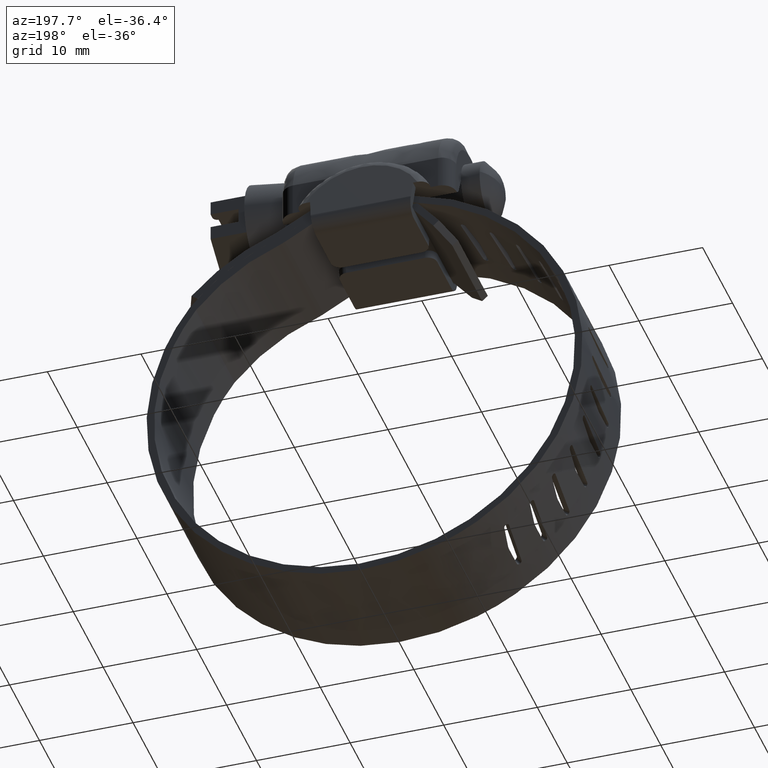
[diagram: clean part render]
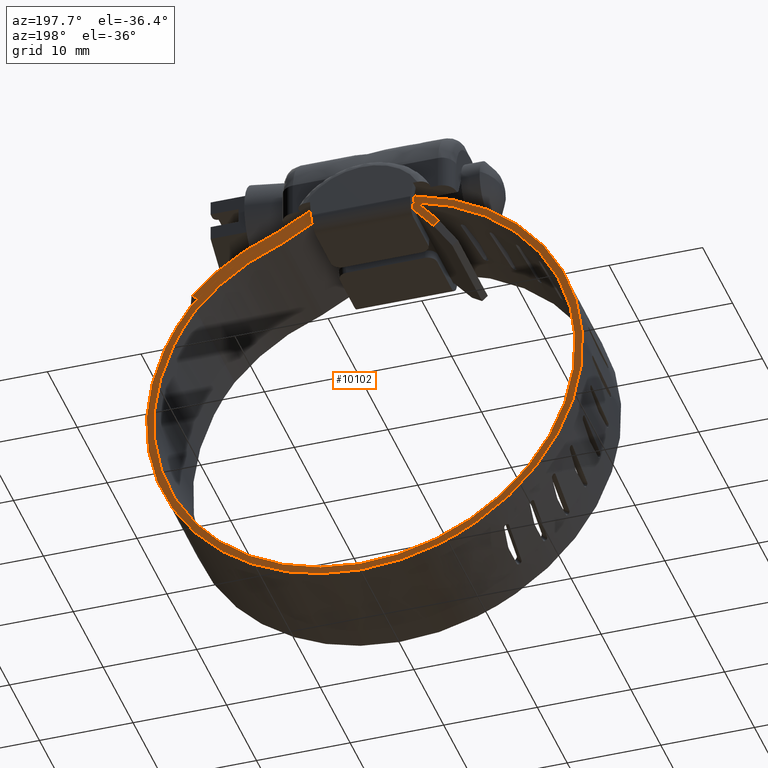
[diagram: same view with one face highlighted and labeled with its STEP entity id]
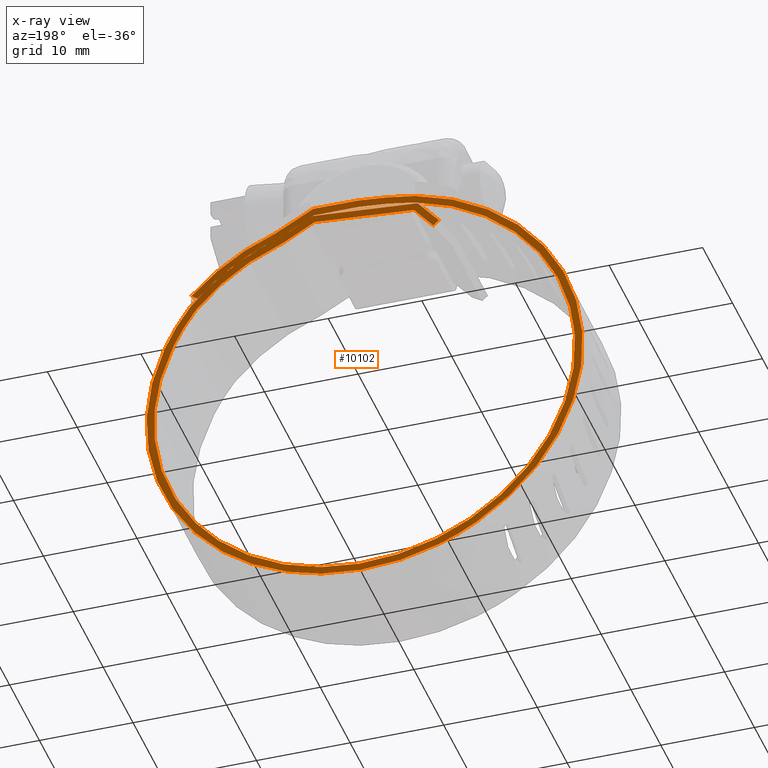
[diagram: x-ray of the same camera — body ghosted, the highlighted face saturated]
A machine part, auxiliary view. The second image highlights one B-rep face of the part: STEP entity #10102.
The next image is the same camera in x-ray: the body ghosted, the highlighted face saturated — about 0% of this face is hidden behind the body in this view.
In plain terms, the highlighted face is a freeform B-spline surface patch.
Its self-contained STEP definition (entity closure, byte-faithful):
#7702=CARTESIAN_POINT('',(-7.943454360734600,6.499999999999719,8.477295496238440));
#7703=VERTEX_POINT('',#7702);
#7711=CARTESIAN_POINT('',(-7.334360875789129,6.499999999999880,7.958638454835349));
#7712=VERTEX_POINT('',#7711);
#7713=CARTESIAN_POINT('',(-7.334360875789129,6.499999999999880,7.958638454835349));
#7714=CARTESIAN_POINT('',(-7.943454360734600,6.499999999999719,8.477295496238440));
#7715=QUASI_UNIFORM_CURVE('',1,(#7713,#7714),.UNSPECIFIED.,.F.,.U.);
#7716=EDGE_CURVE('',#7712,#7703,#7715,.T.);
#7852=CARTESIAN_POINT('',(-5.420225032641400,6.499999999999840,12.119784642097800));
#7853=VERTEX_POINT('',#7852);
#7859=CARTESIAN_POINT('',(-7.915607043560375,6.499999999999840,-32.455222895916933));
#7860=VERTEX_POINT('',#7859);
#7861=CARTESIAN_POINT('',(-5.420225032641400,6.499999999999840,12.119784642097800));
#7862=CARTESIAN_POINT('',(-6.553363053354350,6.499999999999843,11.848810389936119));
#7863=CARTESIAN_POINT('',(-8.667546591455299,6.499999999999836,11.171979570614120));
#7864=CARTESIAN_POINT('',(-11.608471729144510,6.499999999999840,9.743057456246287));
#7865=CARTESIAN_POINT('',(-14.265468575385441,6.499999999999871,7.974393463811858));
#7866=CARTESIAN_POINT('',(-16.422196474544521,6.499999999999777,6.064336440502831));
#7867=CARTESIAN_POINT('',(-18.078704747728398,6.499999999999912,4.207528219871145));
#7868=CARTESIAN_POINT('',(-19.723587648670179,6.499999999999742,1.991383399053899));
#7869=CARTESIAN_POINT('',(-21.184989099740449,6.500000000000062,-0.630703590822162));
#7870=CARTESIAN_POINT('',(-22.195045637467341,6.499999999999763,-3.327264151224911));
#7871=CARTESIAN_POINT('',(-22.856743338214379,6.499999999999819,-5.805203635919967));
#7872=CARTESIAN_POINT('',(-23.225217670279928,6.499999999999961,-8.111417644933207));
#7873=CARTESIAN_POINT('',(-23.350093552466319,6.499999999999765,-10.985820363683670));
#7874=CARTESIAN_POINT('',(-23.154174963040401,6.499999999999876,-13.625876123781721));
#7875=CARTESIAN_POINT('',(-22.629974056229479,6.499999999999837,-16.257584157452278));
#7876=CARTESIAN_POINT('',(-21.908133905328359,6.499999999999834,-18.598568562102191));
#7877=CARTESIAN_POINT('',(-21.036398823552229,6.499999999999841,-20.637006557349942));
#7878=CARTESIAN_POINT('',(-19.925391522427880,6.499999999999838,-22.687140470175081));
#7879=CARTESIAN_POINT('',(-18.601999339066651,6.499999999999846,-24.656768658001159));
#7880=CARTESIAN_POINT('',(-17.036042239676600,6.499999999999836,-26.491085688428399));
#7881=CARTESIAN_POINT('',(-15.300428843931090,6.499999999999846,-28.162821508006040));
#7882=CARTESIAN_POINT('',(-13.622288886044910,6.499999999999834,-29.490009062073931));
#7883=CARTESIAN_POINT('',(-11.138014297878961,6.499999999999848,-31.088133086519541));
#7884=CARTESIAN_POINT('',(-9.267150415888365,6.499999999999837,-31.967223456008810));
#7885=CARTESIAN_POINT('',(-7.915607043560375,6.499999999999840,-32.455222895916933));
#7886=B_SPLINE_CURVE_WITH_KNOTS('',3,(#7861,#7862,#7863,#7864,#7865,#7866,#7867,#7868,#7869,#7870,#7871,#7872,#7873,#7874,#7875,#7876,#7877,#7878,#7879,#7880,#7881,#7882,#7883,#7884,#7885),.UNSPECIFIED.,.F.,.U.,(4,1,1,1,1,1,1,1,1,1,1,1,1,1,1,1,1,1,1,1,1,1,4),(0.000000054419928,3.495254881927451,6.640972387819019,9.786732199204977,13.048974367572660,15.262643474164619,17.243292770001450,21.321115237118772,24.233816571064800,25.864966200061460,29.010707065615470,31.224302831318379,34.486551010590993,36.933259447848101,39.263420735544180,41.826621449156463,43.574259209524712,46.253965652463933,48.933663852548200,50.797818299883303,53.477527083685388,55.341670534495229,59.652463017857123),.UNSPECIFIED.);
#7887=EDGE_CURVE('',#7853,#7860,#7886,.T.);
#7889=CARTESIAN_POINT('',(18.650252286510000,6.499999999999840,3.425319831993435));
#7890=VERTEX_POINT('',#7889);
#7891=CARTESIAN_POINT('',(-7.915607043560375,6.499999999999840,-32.455222895916933));
#7892=CARTESIAN_POINT('',(-7.148567087202244,6.499999999999834,-32.732293461372663));
#7893=CARTESIAN_POINT('',(-5.362022812623450,6.499999999999825,-33.273466383503859));
#7894=CARTESIAN_POINT('',(-2.601822755866314,6.499999999999895,-33.758986033262417));
#7895=CARTESIAN_POINT('',(0.079797787722045,6.499999999999802,-33.884004422802782));
#7896=CARTESIAN_POINT('',(2.951693589323730,6.499999999999751,-33.716141970645232));
#7897=CARTESIAN_POINT('',(6.054585117971497,6.500000000000117,-33.140598794001150));
#7898=CARTESIAN_POINT('',(9.615579572662419,6.499999999999633,-31.877234560201060));
#7899=CARTESIAN_POINT('',(12.551700384594330,6.499999999999947,-30.260115316485379));
#7900=CARTESIAN_POINT('',(14.702447453663250,6.499999999999810,-28.655440118321991));
#7901=CARTESIAN_POINT('',(16.355324451066050,6.499999999999873,-27.180880194330129));
#7902=CARTESIAN_POINT('',(17.763989868093208,6.499999999999758,-25.675841683639529));
#7903=CARTESIAN_POINT('',(19.231736671863349,6.499999999999776,-23.764342286716388));
#7904=CARTESIAN_POINT('',(20.420295279799170,6.499999999999890,-21.846579593475511));
#7905=CARTESIAN_POINT('',(21.439706988606861,6.499999999999874,-19.748598796102652));
#7906=CARTESIAN_POINT('',(22.356955742679901,6.499999999999479,-17.310453982492099));
#7907=CARTESIAN_POINT('',(23.034455090306938,6.500000000000821,-14.509253313393570));
#7908=CARTESIAN_POINT('',(23.329015408310831,6.499999999999262,-11.566628618604630));
#7909=CARTESIAN_POINT('',(23.285810592460130,6.500000000000177,-8.727997655163478));
#7910=CARTESIAN_POINT('',(22.913242748315611,6.499999999999710,-5.989562775471554));
#7911=CARTESIAN_POINT('',(22.132470209696631,6.499999999999890,-3.057486476579130));
#7912=CARTESIAN_POINT('',(20.837154753306450,6.499999999999821,0.114167716087371));
#7913=CARTESIAN_POINT('',(19.511683448598930,6.499999999999850,2.275223016192709));
#7914=CARTESIAN_POINT('',(18.650252286510000,6.499999999999840,3.425319831993435));
#7915=B_SPLINE_CURVE_WITH_KNOTS('',3,(#7891,#7892,#7893,#7894,#7895,#7896,#7897,#7898,#7899,#7900,#7901,#7902,#7903,#7904,#7905,#7906,#7907,#7908,#7909,#7910,#7911,#7912,#7913,#7914),.UNSPECIFIED.,.F.,.U.,(4,1,1,1,1,1,1,1,1,1,1,1,1,1,1,1,1,1,1,1,1,4),(0.000000054406485,2.446647714359436,5.592416570020617,8.388609654903164,10.485773257100680,14.214062504475899,17.825842638563959,21.787150746692259,24.233816571054039,25.864966200051139,28.428162981069381,30.408763950502699,33.088443390256728,35.185629683141919,37.399293694048232,40.894548254998462,43.807274886092927,46.253965652459719,49.399700442262407,52.079416846644612,55.341670534494448,59.652463017857208),.UNSPECIFIED.);
#7916=EDGE_CURVE('',#7860,#7890,#7915,.T.);
#8149=CARTESIAN_POINT('',(18.023018152026101,6.499999999999840,2.928253715390470));
#8150=VERTEX_POINT('',#8149);
#8156=CARTESIAN_POINT('',(-7.596593018965153,6.499999999999840,-31.719804841260569));
#8157=VERTEX_POINT('',#8156);
#8158=CARTESIAN_POINT('',(-7.596593018965153,6.499999999999840,-31.719804841260569));
#8159=CARTESIAN_POINT('',(-6.538927900657038,6.499999999999838,-32.099236060880628));
#8160=CARTESIAN_POINT('',(-4.366585561281712,6.499999999999856,-32.699171918352143));
#8161=CARTESIAN_POINT('',(-1.644247416016669,6.499999999999823,-33.026491288134103));
#8162=CARTESIAN_POINT('',(1.016337482434560,6.499999999999820,-33.059170329735778));
#8163=CARTESIAN_POINT('',(3.222647443987493,6.499999999999915,-32.859860204026020));
#8164=CARTESIAN_POINT('',(5.535309635088588,6.499999999999710,-32.379065125963798));
#8165=CARTESIAN_POINT('',(7.509744679906777,6.499999999999982,-31.784797141981361));
#8166=CARTESIAN_POINT('',(9.873534142538857,6.499999999999758,-30.827727226347200));
#8167=CARTESIAN_POINT('',(12.133187515925171,6.499999999999870,-29.557509431145419));
#8168=CARTESIAN_POINT('',(14.458386207367530,6.499999999999838,-27.846250798672990));
#8169=CARTESIAN_POINT('',(16.382710022435312,6.499999999999838,-26.056015671170520));
#8170=CARTESIAN_POINT('',(18.416966392675931,6.499999999999823,-23.599499998303660));
#8171=CARTESIAN_POINT('',(20.045579448972440,6.500000000000035,-20.939031300053610));
#8172=CARTESIAN_POINT('',(21.264366852122560,6.499999999999741,-18.071923521190730));
#8173=CARTESIAN_POINT('',(22.126805241197552,6.499999999999290,-15.040239296731761));
#8174=CARTESIAN_POINT('',(22.493706637569311,6.500000000001438,-12.282822844293300));
#8175=CARTESIAN_POINT('',(22.516861249222501,6.499999999998025,-9.171565536803632));
#8176=CARTESIAN_POINT('',(22.215221105993631,6.500000000000755,-6.558106925761955));
#8177=CARTESIAN_POINT('',(21.556899602359330,6.499999999999696,-3.977717691031645));
#8178=CARTESIAN_POINT('',(20.809599297808258,6.499999999999885,-1.895898601510198));
#8179=CARTESIAN_POINT('',(19.724338561069811,6.499999999999503,0.412184842243381));
#8180=CARTESIAN_POINT('',(18.695739401612119,6.500000000000694,2.028200477993318));
#8181=CARTESIAN_POINT('',(18.023018152026101,6.499999999999840,2.928253715390470));
#8182=B_SPLINE_CURVE_WITH_KNOTS('',3,(#8158,#8159,#8160,#8161,#8162,#8163,#8164,#8165,#8166,#8167,#8168,#8169,#8170,#8171,#8172,#8173,#8174,#8175,#8176,#8177,#8178,#8179,#8180,#8181),.UNSPECIFIED.,.F.,.U.,(4,1,1,1,1,1,1,1,1,1,1,1,1,1,1,1,1,1,1,1,1,4),(0.000000055448439,3.370994035623703,6.742046610118614,8.202827973352726,11.349124097512940,13.371741699393160,15.281997045528110,17.529355889829940,21.012760713756531,23.035381931021359,26.181682698895770,28.878445189869421,32.586571940129723,35.508139317033397,38.204968901731853,42.025478409856269,43.823365152177033,47.531496503218072,49.891221320383210,51.801488231966751,54.161185352416567,57.532209339589713),.UNSPECIFIED.);
#8183=EDGE_CURVE('',#8157,#8150,#8182,.T.);
#8185=CARTESIAN_POINT('',(-5.352989624915730,6.499999999999840,11.312958498989421));
#8186=VERTEX_POINT('',#8185);
#8187=CARTESIAN_POINT('',(-5.352989624915730,6.499999999999840,11.312958498989421));
#8188=CARTESIAN_POINT('',(-6.844660197153641,6.499999999999827,10.947842366523121));
#8189=CARTESIAN_POINT('',(-8.795040979111834,6.499999999999887,10.251846479895921));
#8190=CARTESIAN_POINT('',(-11.288364607505960,6.499999999999784,8.953947572134041));
#8191=CARTESIAN_POINT('',(-12.967291528066500,6.499999999999899,7.890026959759283));
#8192=CARTESIAN_POINT('',(-14.623322868136370,6.499999999999770,6.598860335059025));
#8193=CARTESIAN_POINT('',(-16.567158980320741,6.499999999999869,4.780457004647321));
#8194=CARTESIAN_POINT('',(-18.335722025571830,6.499999999999796,2.632560060055161));
#8195=CARTESIAN_POINT('',(-19.817271196333039,6.499999999999831,0.196780670024494));
#8196=CARTESIAN_POINT('',(-20.864545081512858,6.499999999999871,-2.004119719319417));
#8197=CARTESIAN_POINT('',(-21.794528506343351,6.499999999999787,-4.660263466897697));
#8198=CARTESIAN_POINT('',(-22.397326895519409,6.499999999999911,-7.681900231633582));
#8199=CARTESIAN_POINT('',(-22.567339586692380,6.499999999999913,-10.942998759593619));
#8200=CARTESIAN_POINT('',(-22.286002392095799,6.499999999999793,-14.235771804105610));
#8201=CARTESIAN_POINT('',(-21.553260128127452,6.499999999999854,-17.229210976200459));
#8202=CARTESIAN_POINT('',(-20.638883829586131,6.499999999999838,-19.569621896482129));
#8203=CARTESIAN_POINT('',(-19.629487655932419,6.499999999999838,-21.620927426183162));
#8204=CARTESIAN_POINT('',(-18.473460967966169,6.499999999999849,-23.466072218714292));
#8205=CARTESIAN_POINT('',(-16.867991054671759,6.499999999999829,-25.494361353606660));
#8206=CARTESIAN_POINT('',(-15.267072822011590,6.499999999999885,-27.130752428338919));
#8207=CARTESIAN_POINT('',(-13.033819907397470,6.499999999999673,-28.960901713367509));
#8208=CARTESIAN_POINT('',(-10.544892041026650,6.500000000000276,-30.509686334230860));
#8209=CARTESIAN_POINT('',(-8.513264532091506,6.499999999999239,-31.391028256005189));
#8210=CARTESIAN_POINT('',(-7.596593018965153,6.499999999999840,-31.719804841260569));
#8211=B_SPLINE_CURVE_WITH_KNOTS('',3,(#8187,#8188,#8189,#8190,#8191,#8192,#8193,#8194,#8195,#8196,#8197,#8198,#8199,#8200,#8201,#8202,#8203,#8204,#8205,#8206,#8207,#8208,#8209,#8210),.UNSPECIFIED.,.F.,.U.,(4,1,1,1,1,1,1,1,1,1,1,1,1,1,1,1,1,1,1,1,1,4),(0.000000055438981,4.607042374785742,6.180194844130625,8.427551702204006,10.562552149176710,12.472802630363180,16.405676778574620,18.877761955522750,21.012760932068488,23.709569149438170,27.305331168867770,30.226871971810152,33.485517068349367,37.193674618894192,39.441022082354920,41.014173478588773,44.048099737821524,45.958351314642329,48.767544127779182,50.902544330431688,54.610657279322638,57.532209937418052),.UNSPECIFIED.);
#8212=EDGE_CURVE('',#8186,#8157,#8211,.T.);
#8388=CARTESIAN_POINT('',(8.891210296745609,6.499999999999840,9.261212900200299));
#8389=VERTEX_POINT('',#8388);
#8395=CARTESIAN_POINT('',(18.023018152026101,6.499999999999840,2.928253715390470));
#8396=CARTESIAN_POINT('',(17.533403360860738,6.499999999999852,3.511325429196206));
#8397=CARTESIAN_POINT('',(16.370839677186471,6.499999999999823,4.752959451519467));
#8398=CARTESIAN_POINT('',(14.346835983308861,6.499999999999852,6.450080114185261));
#8399=CARTESIAN_POINT('',(11.818182759275849,6.499999999999822,8.052360907132933));
#8400=CARTESIAN_POINT('',(9.940166576453022,6.499999999999877,8.889744727215955));
#8401=CARTESIAN_POINT('',(8.891210296745609,6.499999999999840,9.261212900200299));
#8402=B_SPLINE_CURVE_WITH_KNOTS('',3,(#8395,#8396,#8397,#8398,#8399,#8400,#8401),.UNSPECIFIED.,.F.,.U.,(4,1,1,1,4),(3.220642E-009,2.284134800954798,5.095385461057345,7.906620998508275,11.244972398327731),.UNSPECIFIED.);
#8403=EDGE_CURVE('',#8150,#8389,#8402,.T.);
#8432=CARTESIAN_POINT('',(8.520745558330830,6.499999999999840,9.442571207108379));
#8433=VERTEX_POINT('',#8432);
#8439=CARTESIAN_POINT('',(8.520745558330830,6.499999999999840,9.442571207108379));
#8440=CARTESIAN_POINT('',(8.636741866078252,6.499999999999836,9.368191226072726));
#8441=CARTESIAN_POINT('',(8.761315274702623,6.499999999999844,9.307202184358193));
#8442=CARTESIAN_POINT('',(8.891210296745609,6.499999999999840,9.261212900200299));
#8443=B_SPLINE_CURVE_WITH_KNOTS('',3,(#8439,#8440,#8441,#8442),.UNSPECIFIED.,.F.,.U.,(4,4),(1.693800E-009,0.413385586399348),.UNSPECIFIED.);
#8444=EDGE_CURVE('',#8433,#8389,#8443,.T.);
#8473=CARTESIAN_POINT('',(5.345477946834220,6.499999999999840,11.222824051806439));
#8474=VERTEX_POINT('',#8473);
#8480=CARTESIAN_POINT('',(8.520745558330830,6.499999999999840,9.442571207108379));
#8481=CARTESIAN_POINT('',(7.498628657825021,6.499999999999824,10.097855615698160));
#8482=CARTESIAN_POINT('',(6.437736373960262,6.499999999999857,10.692644560035360));
#8483=CARTESIAN_POINT('',(5.345477946834220,6.499999999999840,11.222824051806439));
#8484=B_SPLINE_CURVE_WITH_KNOTS('',3,(#8480,#8481,#8482,#8483),.UNSPECIFIED.,.F.,.U.,(4,4),(1.337912E-010,3.642398924120134),.UNSPECIFIED.);
#8485=EDGE_CURVE('',#8433,#8474,#8484,.T.);
#8503=CARTESIAN_POINT('',(-5.275000000000000,6.499999999999840,10.377083000000200));
#8504=VERTEX_POINT('',#8503);
#8510=CARTESIAN_POINT('',(-5.275000000000000,6.499999999999840,10.377083000000200));
#8511=CARTESIAN_POINT('',(5.345477946834220,6.499999999999840,11.222824051806439));
#8512=QUASI_UNIFORM_CURVE('',1,(#8510,#8511),.UNSPECIFIED.,.F.,.U.);
#8513=EDGE_CURVE('',#8504,#8474,#8512,.T.);
#8530=CARTESIAN_POINT('',(-7.334360875789129,6.499999999999880,7.958638454835349));
#8531=CARTESIAN_POINT('',(-5.275000000000000,6.499999999999840,10.377083000000200));
#8532=QUASI_UNIFORM_CURVE('',1,(#8530,#8531),.UNSPECIFIED.,.F.,.U.);
#8533=EDGE_CURVE('',#7712,#8504,#8532,.T.);
#8566=CARTESIAN_POINT('',(-5.669089974837690,6.499999999999840,11.148232973712741));
#8567=VERTEX_POINT('',#8566);
#8568=CARTESIAN_POINT('',(-5.669089974837690,6.499999999999840,11.148232973712741));
#8569=CARTESIAN_POINT('',(-7.943454360734600,6.499999999999719,8.477295496238440));
#8570=QUASI_UNIFORM_CURVE('',1,(#8568,#8569),.UNSPECIFIED.,.F.,.U.);
#8571=EDGE_CURVE('',#8567,#7703,#8570,.T.);
#8603=CARTESIAN_POINT('',(5.497490615650190,6.499999999999840,12.037461844668920));
#8604=VERTEX_POINT('',#8603);
#8610=CARTESIAN_POINT('',(5.497490615650190,6.499999999999840,12.037461844668920));
#8611=CARTESIAN_POINT('',(-5.669089974837690,6.499999999999840,11.148232973712741));
#8612=QUASI_UNIFORM_CURVE('',1,(#8610,#8611),.UNSPECIFIED.,.F.,.U.);
#8613=EDGE_CURVE('',#8604,#8567,#8612,.T.);
#8642=CARTESIAN_POINT('',(8.952501685405251,6.499999999999840,10.116059579619000));
#8643=VERTEX_POINT('',#8642);
#8649=CARTESIAN_POINT('',(8.952501685405251,6.499999999999840,10.116059579619000));
#8650=CARTESIAN_POINT('',(7.842401183048898,6.499999999999846,10.827739501784350));
#8651=CARTESIAN_POINT('',(6.687732523731253,6.499999999999827,11.469890321215640));
#8652=CARTESIAN_POINT('',(5.497490615650190,6.499999999999840,12.037461844668920));
#8653=B_SPLINE_CURVE_WITH_KNOTS('',3,(#8649,#8650,#8651,#8652),.UNSPECIFIED.,.F.,.U.,(4,4),(1.434333E-010,3.955920062126980),.UNSPECIFIED.);
#8654=EDGE_CURVE('',#8643,#8604,#8653,.T.);
#8683=CARTESIAN_POINT('',(9.158315498192051,6.499999999999840,10.015304944555799));
#8684=VERTEX_POINT('',#8683);
#8690=CARTESIAN_POINT('',(8.952501685405251,6.499999999999840,10.116059579619000));
#8691=CARTESIAN_POINT('',(9.016942980928654,6.499999999999854,10.074732998908701));
#8692=CARTESIAN_POINT('',(9.086154146414513,6.499999999999833,10.040857995311811));
#8693=CARTESIAN_POINT('',(9.158315498192051,6.499999999999840,10.015304944555799));
#8694=B_SPLINE_CURVE_WITH_KNOTS('',3,(#8690,#8691,#8692,#8693),.UNSPECIFIED.,.F.,.U.,(4,4),(2.437034E-009,0.229664641168087),.UNSPECIFIED.);
#8695=EDGE_CURVE('',#8643,#8684,#8694,.T.);
#8726=CARTESIAN_POINT('',(18.650252286510000,6.499999999999840,3.425319831993435));
#8727=CARTESIAN_POINT('',(17.868002952177960,6.499999999999818,4.358980206257459));
#8728=CARTESIAN_POINT('',(16.276445439194859,6.499999999999877,5.965186761612056));
#8729=CARTESIAN_POINT('',(13.943419600956609,6.499999999999846,7.687833569278358));
#8730=CARTESIAN_POINT('',(11.617726276766399,6.499999999999768,9.024103987960611));
#8731=CARTESIAN_POINT('',(10.105547802453390,6.499999999999883,9.679832065079637));
#8732=CARTESIAN_POINT('',(9.158315498192051,6.499999999999840,10.015304944555799));
#8733=B_SPLINE_CURVE_WITH_KNOTS('',3,(#8726,#8727,#8728,#8729,#8730,#8731,#8732),.UNSPECIFIED.,.F.,.U.,(4,1,1,1,4),(3.171975E-009,3.654118917840622,6.760114628757830,8.678526904285082,11.693173416253281),.UNSPECIFIED.);
#8734=EDGE_CURVE('',#7890,#8684,#8733,.T.);
#9724=CARTESIAN_POINT('',(18.489079278440450,6.499999999999840,4.831032631837601));
#9725=VERTEX_POINT('',#9724);
#9732=CARTESIAN_POINT('',(17.845437538605001,6.499999999999840,4.348126313892585));
#9733=VERTEX_POINT('',#9732);
#9739=CARTESIAN_POINT('',(18.489079278440450,6.499999999999840,4.831032631837601));
#9740=CARTESIAN_POINT('',(17.845437538605001,6.499999999999840,4.348126313892585));
#9741=QUASI_UNIFORM_CURVE('',1,(#9739,#9740),.UNSPECIFIED.,.F.,.U.);
#9742=EDGE_CURVE('',#9725,#9733,#9741,.T.);
#9812=CARTESIAN_POINT('',(9.408111426015370,6.499999999999840,10.786125742977420));
#9813=VERTEX_POINT('',#9812);
#9819=CARTESIAN_POINT('',(5.491601281603991,6.499999999999840,12.935040689760960));
#9820=VERTEX_POINT('',#9819);
#9821=CARTESIAN_POINT('',(9.408111426015370,6.499999999999840,10.786125742977420));
#9822=CARTESIAN_POINT('',(8.154068837886804,6.499999999999961,11.591315979898489));
#9823=CARTESIAN_POINT('',(6.844419249367082,6.499999999999733,12.309873657796141));
#9824=CARTESIAN_POINT('',(5.491601281603991,6.499999999999840,12.935040689760960));
#9825=B_SPLINE_CURVE_WITH_KNOTS('',3,(#9821,#9822,#9823,#9824),.UNSPECIFIED.,.F.,.U.,(4,4),(1.843894E-010,4.470855330536846),.UNSPECIFIED.);
#9826=EDGE_CURVE('',#9813,#9820,#9825,.T.);
#9867=CARTESIAN_POINT('',(8.975899945512472,6.499999999999840,10.112929459475000));
#9868=VERTEX_POINT('',#9867);
#9874=CARTESIAN_POINT('',(9.141732246792632,6.499999999999840,10.031776929180641));
#9875=VERTEX_POINT('',#9874);
#9876=CARTESIAN_POINT('',(8.975899945512472,6.499999999999840,10.112929459475000));
#9877=CARTESIAN_POINT('',(9.141732246792632,6.499999999999840,10.031776929180641));
#9878=QUASI_UNIFORM_CURVE('',1,(#9876,#9877),.UNSPECIFIED.,.F.,.U.);
#9879=EDGE_CURVE('',#9868,#9875,#9878,.T.);
#9912=CARTESIAN_POINT('',(5.417456028425690,6.499999999999840,12.086555341109561));
#9913=VERTEX_POINT('',#9912);
#9919=CARTESIAN_POINT('',(8.975899945512472,6.499999999999840,10.112929459475000));
#9920=CARTESIAN_POINT('',(7.833743625681194,6.499999999999838,10.846258874650070));
#9921=CARTESIAN_POINT('',(6.644321930872003,6.499999999999849,11.505957422453150));
#9922=CARTESIAN_POINT('',(5.417456028425690,6.499999999999840,12.086555341109561));
#9923=B_SPLINE_CURVE_WITH_KNOTS('',3,(#9919,#9920,#9921,#9922),.UNSPECIFIED.,.F.,.U.,(4,4),(1.658842E-010,4.071931315558121),.UNSPECIFIED.);
#9924=EDGE_CURVE('',#9868,#9913,#9923,.T.);
#9961=CARTESIAN_POINT('',(5.417456028425690,6.499999999999840,12.086555341109561));
#9962=CARTESIAN_POINT('',(3.784759769866521,6.499999999999838,12.188371747388800));
#9963=CARTESIAN_POINT('',(0.167926346265074,6.499999999999870,12.193901541287600));
#9964=CARTESIAN_POINT('',(-3.420293306638020,6.499999999999815,11.716252580414301));
#9965=CARTESIAN_POINT('',(-5.352989624915730,6.499999999999840,11.312958498989421));
#9966=B_SPLINE_CURVE_WITH_KNOTS('',3,(#9961,#9962,#9963,#9964,#9965),.UNSPECIFIED.,.F.,.U.,(4,1,4),(5.537082E-010,4.907601590735911,10.830561126189441),.UNSPECIFIED.);
#9967=EDGE_CURVE('',#9913,#8186,#9966,.T.);
#9996=CARTESIAN_POINT('',(5.491601281603991,6.499999999999840,12.935040689760960));
#9997=CARTESIAN_POINT('',(3.836635491564075,6.499999999999835,13.015418250335390));
#9998=CARTESIAN_POINT('',(0.174403709231800,6.499999999999847,12.988770033842091));
#9999=CARTESIAN_POINT('',(-3.459451131567076,6.499999999999826,12.512565426921579));
#10000=CARTESIAN_POINT('',(-5.420225032641400,6.499999999999840,12.119784642097800));
#10001=B_SPLINE_CURVE_WITH_KNOTS('',3,(#9996,#9997,#9998,#9999,#10000),.UNSPECIFIED.,.F.,.U.,(4,1,4),(4.748397E-010,4.970749782179190,10.969923890782891),.UNSPECIFIED.);
#10002=EDGE_CURVE('',#9820,#7853,#10001,.T.);
#10055=CARTESIAN_POINT('',(-25.616147311531599,6.499999999999880,15.326515716583010));
#10056=CARTESIAN_POINT('',(25.607655201488249,6.499999999999880,15.326515716583010));
#10057=CARTESIAN_POINT('',(-25.616147311531599,6.499999999999880,-36.179744361666764));
#10058=CARTESIAN_POINT('',(25.607655201488249,6.499999999999880,-36.179744361666764));
#10059=B_SPLINE_SURFACE_WITH_KNOTS('',1,1,((#10055,#10057),(#10056,#10058)),.UNSPECIFIED.,.F.,.F.,.U.,(2,2),(2,2),(0.0,51.223802513019862),(0.0,51.506260078249767),.UNSPECIFIED.);
#10060=ORIENTED_EDGE('',*,*,#8533,.F.);
#10061=ORIENTED_EDGE('',*,*,#7716,.T.);
#10062=ORIENTED_EDGE('',*,*,#8571,.F.);
#10063=ORIENTED_EDGE('',*,*,#8613,.F.);
#10064=ORIENTED_EDGE('',*,*,#8654,.F.);
#10065=ORIENTED_EDGE('',*,*,#8695,.T.);
#10066=ORIENTED_EDGE('',*,*,#8734,.F.);
#10067=ORIENTED_EDGE('',*,*,#7916,.F.);
#10068=ORIENTED_EDGE('',*,*,#7887,.F.);
#10069=ORIENTED_EDGE('',*,*,#10002,.F.);
#10070=ORIENTED_EDGE('',*,*,#9826,.F.);
#10071=CARTESIAN_POINT('',(18.489079278440450,6.499999999999840,4.831032631837601));
#10072=CARTESIAN_POINT('',(17.886086486801091,6.499999999999852,5.479111173614756));
#10073=CARTESIAN_POINT('',(16.645666897698732,6.499999999999834,6.665210477999922));
#10074=CARTESIAN_POINT('',(14.551309241845310,6.499999999999841,8.257649776714406));
#10075=CARTESIAN_POINT('',(12.164490710922459,6.499999999999850,9.672973360292344));
#10076=CARTESIAN_POINT('',(10.377458803649830,6.499999999999848,10.443873277005601));
#10077=CARTESIAN_POINT('',(9.408111426015370,6.499999999999840,10.786125742977420));
#10078=B_SPLINE_CURVE_WITH_KNOTS('',3,(#10071,#10072,#10073,#10074,#10075,#10076,#10077),.UNSPECIFIED.,.F.,.U.,(4,1,1,1,4),(2.401652E-009,2.655644663532389,5.139961935243442,7.881267438059701,10.965242807142520),.UNSPECIFIED.);
#10079=EDGE_CURVE('',#9725,#9813,#10078,.T.);
#10080=ORIENTED_EDGE('',*,*,#10079,.F.);
#10081=ORIENTED_EDGE('',*,*,#9742,.T.);
#10082=CARTESIAN_POINT('',(17.845437538605001,6.499999999999840,4.348126313892585));
#10083=CARTESIAN_POINT('',(16.836065389480659,6.499999999999855,5.424834312885261));
#10084=CARTESIAN_POINT('',(15.199666423456900,6.499999999999858,6.850064430152777));
#10085=CARTESIAN_POINT('',(12.249635250947160,6.499999999999787,8.737376681125747));
#10086=CARTESIAN_POINT('',(10.404554173638219,6.499999999999858,9.586009103849488));
#10087=CARTESIAN_POINT('',(9.141732246792632,6.499999999999840,10.031776929180641));
#10088=B_SPLINE_CURVE_WITH_KNOTS('',3,(#10082,#10083,#10084,#10085,#10086,#10087),.UNSPECIFIED.,.F.,.U.,(4,1,1,4),(2.365466E-009,4.427488378189547,6.477244075679804,10.494775881866889),.UNSPECIFIED.);
#10089=EDGE_CURVE('',#9733,#9875,#10088,.T.);
#10090=ORIENTED_EDGE('',*,*,#10089,.T.);
#10091=ORIENTED_EDGE('',*,*,#9879,.F.);
#10092=ORIENTED_EDGE('',*,*,#9924,.T.);
#10093=ORIENTED_EDGE('',*,*,#9967,.T.);
#10094=ORIENTED_EDGE('',*,*,#8212,.T.);
#10095=ORIENTED_EDGE('',*,*,#8183,.T.);
#10096=ORIENTED_EDGE('',*,*,#8403,.T.);
#10097=ORIENTED_EDGE('',*,*,#8444,.F.);
#10098=ORIENTED_EDGE('',*,*,#8485,.T.);
#10099=ORIENTED_EDGE('',*,*,#8513,.F.);
#10100=EDGE_LOOP('',(#10060,#10061,#10062,#10063,#10064,#10065,#10066,#10067,#10068,#10069,#10070,#10080,#10081,#10090,#10091,#10092,#10093,#10094,#10095,#10096,#10097,#10098,#10099));
#10101=FACE_OUTER_BOUND('',#10100,.T.);
#10102=ADVANCED_FACE('',(#10101),#10059,.T.);